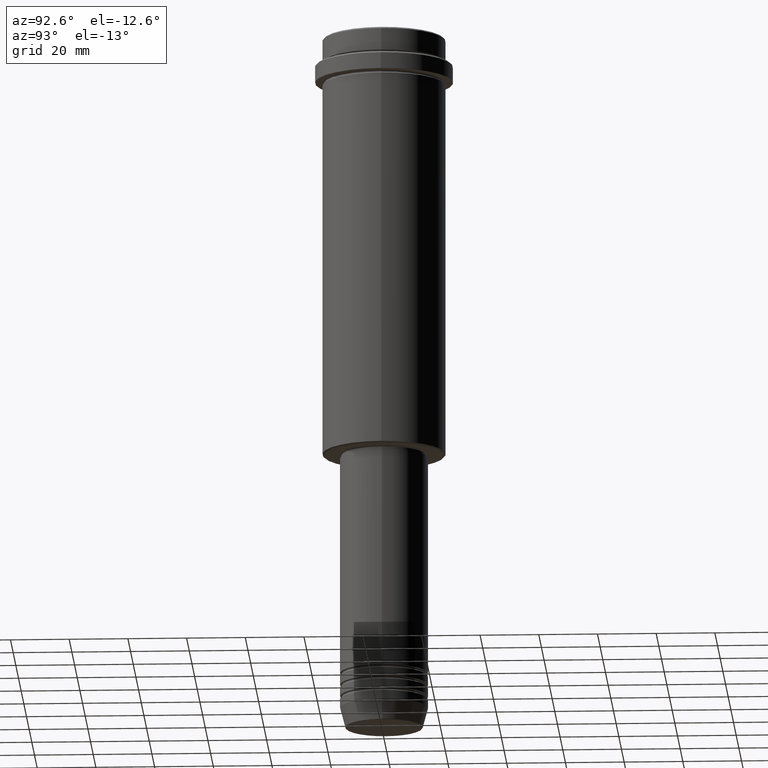
[diagram: clean part render]
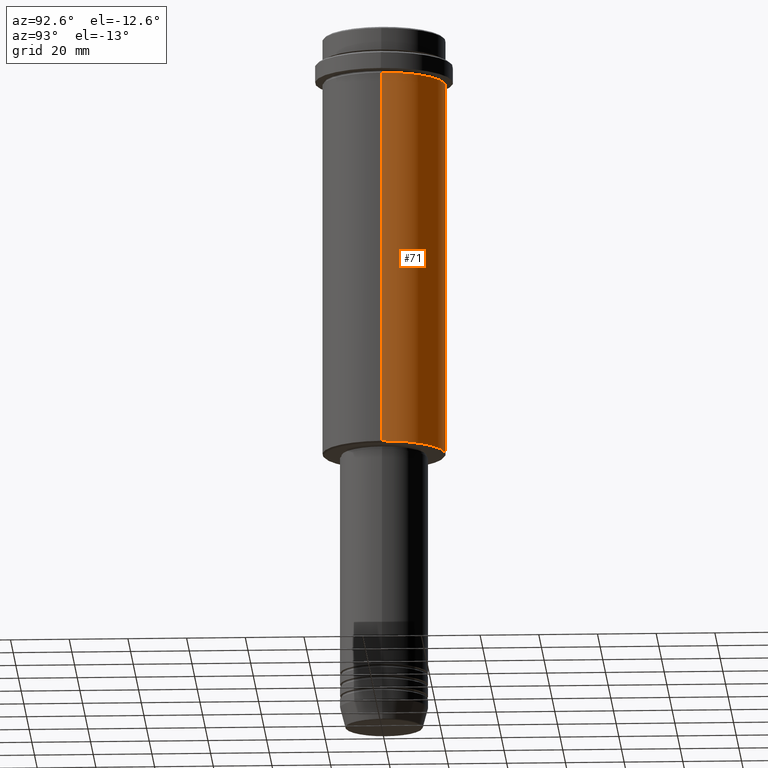
[diagram: same view with one face highlighted and labeled with its STEP entity id]
A machine part, auxiliary view. The second image highlights one B-rep face of the part: STEP entity #71.
In plain terms, the highlighted cylindrical surface (partial cylindrical patch) has radius 21 mm, axis along (-0, -0, 1).
Its self-contained STEP definition (entity closure, byte-faithful):
#39 = EDGE_LOOP ( 'NONE', ( #750, #119, #969, #1200 ) ) ;
#70 = CARTESIAN_POINT ( 'NONE',  ( 21.00000000000000000, 0.000000000000000000, -144.5000000000000000 ) ) ;
#71 = ADVANCED_FACE ( 'NONE', ( #389 ), #1274, .T. ) ;
#74 = CARTESIAN_POINT ( 'NONE',  ( 0.000000000000000000, 0.000000000000000000, -16.00000000000000355 ) ) ;
#118 = LINE ( 'NONE', #1198, #881 ) ;
#119 = ORIENTED_EDGE ( 'NONE', *, *, #489, .T. ) ;
#128 = DIRECTION ( 'NONE',  ( -0.000000000000000000, -0.000000000000000000, 1.000000000000000000 ) ) ;
#188 = CARTESIAN_POINT ( 'NONE',  ( -21.00000000000000000, 2.571758278209441661E-15, -16.00000000000000355 ) ) ;
#293 = CARTESIAN_POINT ( 'NONE',  ( -21.00000000000000000, 2.571758278209441661E-15, -144.5000000000000000 ) ) ;
#389 = FACE_OUTER_BOUND ( 'NONE', #39, .T. ) ;
#449 = VERTEX_POINT ( 'NONE', #293 ) ;
#472 = EDGE_CURVE ( 'NONE', #1372, #1325, #625, .T. ) ;
#489 = EDGE_CURVE ( 'NONE', #449, #1325, #844, .T. ) ;
#501 = DIRECTION ( 'NONE',  ( -0.000000000000000000, -0.000000000000000000, 1.000000000000000000 ) ) ;
#625 = CIRCLE ( 'NONE', #1397, 21.00000000000000000 ) ;
#714 = DIRECTION ( 'NONE',  ( 1.000000000000000000, 0.000000000000000000, 0.000000000000000000 ) ) ;
#750 = ORIENTED_EDGE ( 'NONE', *, *, #1254, .T. ) ;
#760 = AXIS2_PLACEMENT_3D ( 'NONE', #917, #800, #1238 ) ;
#800 = DIRECTION ( 'NONE',  ( -0.000000000000000000, -0.000000000000000000, 1.000000000000000000 ) ) ;
#844 = LINE ( 'NONE', #1071, #1175 ) ;
#881 = VECTOR ( 'NONE', #128, 1000.000000000000000 ) ;
#917 = CARTESIAN_POINT ( 'NONE',  ( 0.000000000000000000, 0.000000000000000000, -144.5000000000000000 ) ) ;
#921 = VERTEX_POINT ( 'NONE', #70 ) ;
#928 = CIRCLE ( 'NONE', #760, 21.00000000000000000 ) ;
#969 = ORIENTED_EDGE ( 'NONE', *, *, #472, .F. ) ;
#971 = DIRECTION ( 'NONE',  ( 1.000000000000000000, 0.000000000000000000, 0.000000000000000000 ) ) ;
#982 = DIRECTION ( 'NONE',  ( -0.000000000000000000, -0.000000000000000000, 1.000000000000000000 ) ) ;
#1011 = EDGE_CURVE ( 'NONE', #921, #1372, #118, .T. ) ;
#1058 = CARTESIAN_POINT ( 'NONE',  ( 0.000000000000000000, 0.000000000000000000, 0.000000000000000000 ) ) ;
#1065 = CARTESIAN_POINT ( 'NONE',  ( 21.00000000000000000, 0.000000000000000000, -16.00000000000000355 ) ) ;
#1071 = CARTESIAN_POINT ( 'NONE',  ( -21.00000000000000000, 2.571758278209441661E-15, 0.000000000000000000 ) ) ;
#1175 = VECTOR ( 'NONE', #1383, 1000.000000000000000 ) ;
#1198 = CARTESIAN_POINT ( 'NONE',  ( 21.00000000000000000, 0.000000000000000000, 0.000000000000000000 ) ) ;
#1200 = ORIENTED_EDGE ( 'NONE', *, *, #1011, .F. ) ;
#1238 = DIRECTION ( 'NONE',  ( -1.000000000000000000, 0.000000000000000000, 0.000000000000000000 ) ) ;
#1254 = EDGE_CURVE ( 'NONE', #921, #449, #928, .T. ) ;
#1274 = CYLINDRICAL_SURFACE ( 'NONE', #1331, 21.00000000000000000 ) ;
#1325 = VERTEX_POINT ( 'NONE', #188 ) ;
#1331 = AXIS2_PLACEMENT_3D ( 'NONE', #1058, #501, #714 ) ;
#1372 = VERTEX_POINT ( 'NONE', #1065 ) ;
#1383 = DIRECTION ( 'NONE',  ( -0.000000000000000000, -0.000000000000000000, 1.000000000000000000 ) ) ;
#1397 = AXIS2_PLACEMENT_3D ( 'NONE', #74, #982, #971 ) ;